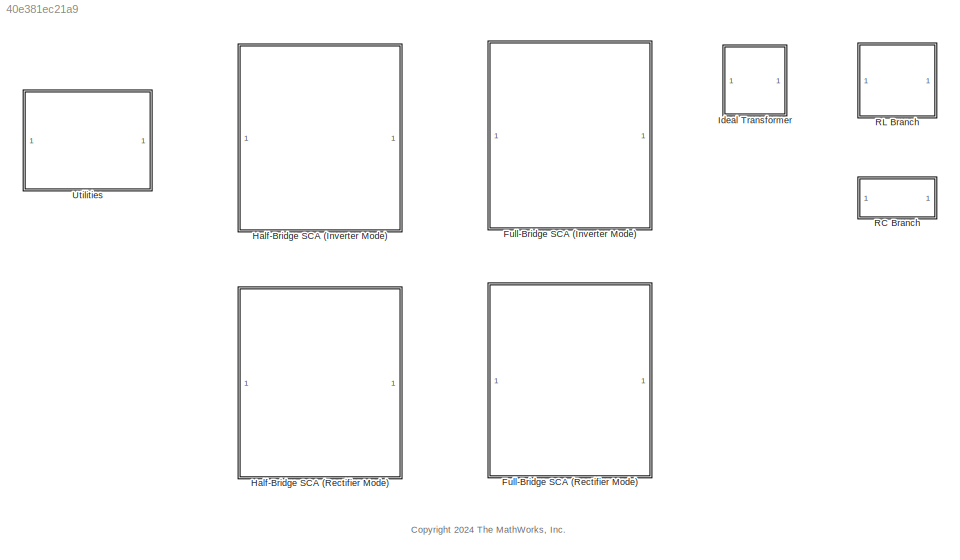
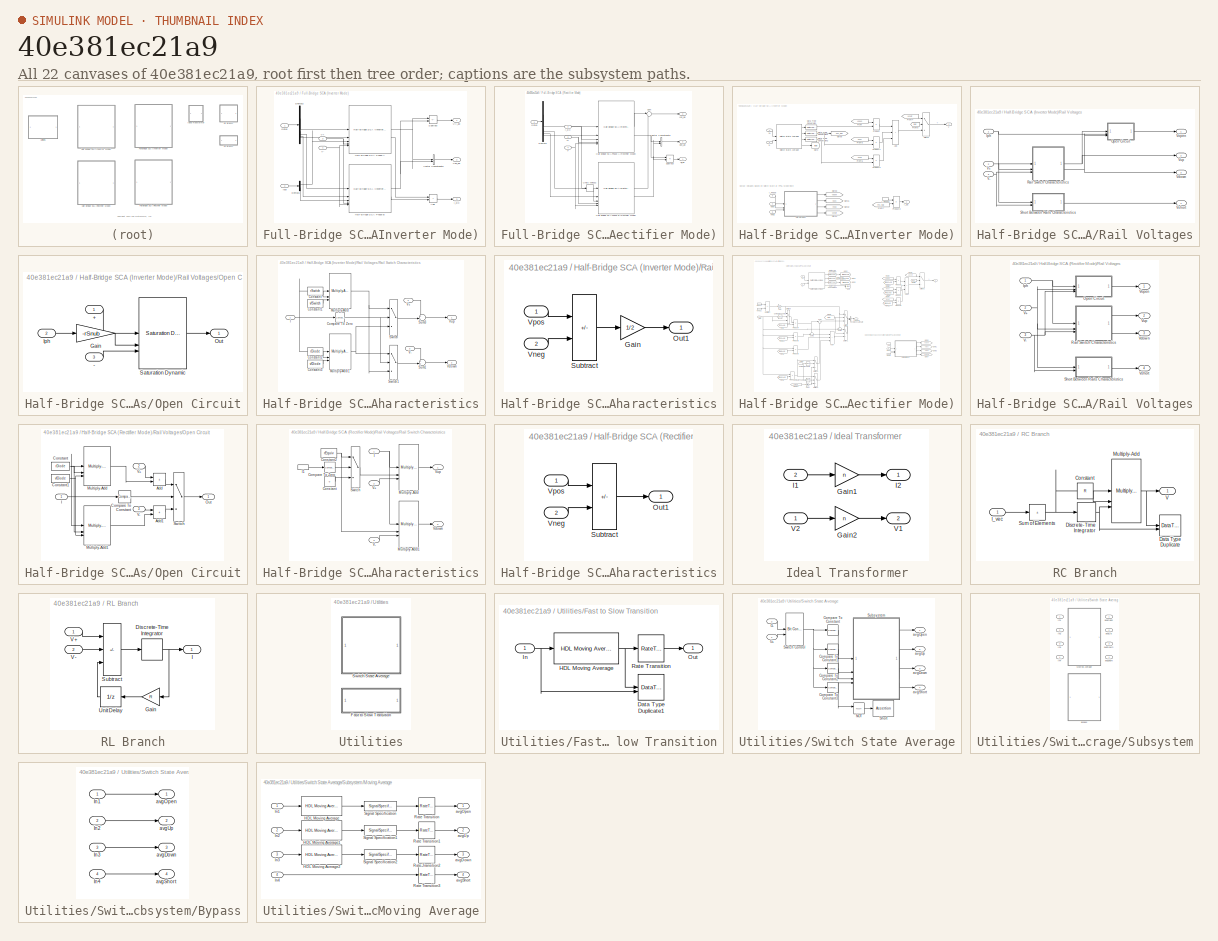
[diagram: thumbnail index - all 22 canvases of the model, root first then tree order]
MODEL slx_40e381ec21a9
KIND library
CONFIG AbsTol = auto
CONFIG EnableMultiTasking = off
CONFIG FixedStep = auto
CONFIG MaxStep = auto
CONFIG MinStep = auto
CONFIG RelTol = 1e-3
CONFIG SampleTimeConstraint = Unconstrained
CONFIG SolverName = VariableStepAuto
CONFIG StartTime = 0.0
CONFIG StopTime = 10.0
BLOCK [SubSystem] Full-Bridge SCA (Inverter Mode)
BLOCK [Sum] Full-Bridge SCA (Inverter Mode)/Add
  IconShape = rectangular
BLOCK [Demux] Full-Bridge SCA (Inverter Mode)/Demux1
  Outputs = 2
BLOCK [Demux] Full-Bridge SCA (Inverter Mode)/Demux2
BLOCK [Inport] Full-Bridge SCA (Inverter Mode)/Gates
  OutDataTypeStr = boolean
  PortDimensions = 4
BLOCK [Reference] Full-Bridge SCA (Inverter Mode)/Half-Bridge SCA Phase A  REF=$bdroot/Half-Bridge SCA
(Inverter Mode)
  SourceBlock = $bdroot/Half-Bridge SCA\n(Inverter Mode)
BLOCK [Reference] Full-Bridge SCA (Inverter Mode)/Half-Bridge SCA Phase B  REF=$bdroot/Half-Bridge SCA
(Inverter Mode)
  SourceBlock = $bdroot/Half-Bridge SCA\n(Inverter Mode)
BLOCK [Outport] Full-Bridge SCA (Inverter Mode)/I_DC
  Port = 3
BLOCK [Inport] Full-Bridge SCA (Inverter Mode)/Iout
  Port = 2
  PortDimensions = 2
BLOCK [Sum] Full-Bridge SCA (Inverter Mode)/Subtract
  IconShape = rectangular
  Inputs = +-
BLOCK [Inport] Full-Bridge SCA (Inverter Mode)/V+
  Port = 3
  PortDimensions = 1
BLOCK [Inport] Full-Bridge SCA (Inverter Mode)/V-
  Port = 4
  PortDimensions = 1
BLOCK [Concatenate] Full-Bridge SCA (Inverter Mode)/Vector Concatenate
BLOCK [Outport] Full-Bridge SCA (Inverter Mode)/Vll_ab
BLOCK [Outport] Full-Bridge SCA (Inverter Mode)/Vph_ab
  Port = 2
BLOCK [SubSystem] Full-Bridge SCA (Rectifier Mode)
BLOCK [Demux] Full-Bridge SCA (Rectifier Mode)/Demux2
BLOCK [Inport] Full-Bridge SCA (Rectifier Mode)/Gates
  PortDimensions = 4
BLOCK [Reference] Full-Bridge SCA (Rectifier Mode)/Half-Bridge SCA Phase A (Rectifier Mode)  REF=$bdroot/Half-Bridge SCA
(Rectifier Mode)
  SourceBlock = $bdroot/Half-Bridge SCA\n(Rectifier Mode)
BLOCK [Reference] Full-Bridge SCA (Rectifier Mode)/Half-Bridge SCA Phase B (Rectifier Mode)  REF=$bdroot/Half-Bridge SCA
(Rectifier Mode)
  SourceBlock = $bdroot/Half-Bridge SCA\n(Rectifier Mode)
BLOCK [Inport] Full-Bridge SCA (Rectifier Mode)/I_DC
  Port = 2
  PortDimensions = 1
BLOCK [Outport] Full-Bridge SCA (Rectifier Mode)/Iph_ab
  Port = 3
BLOCK [Sum] Full-Bridge SCA (Rectifier Mode)/Subtract
  IconShape = rectangular
  Inputs = +-
  OutDataTypeStr = Inherit: Inherit via back propagation
BLOCK [Sum] Full-Bridge SCA (Rectifier Mode)/Sum
  Inputs = |++
BLOCK [UnaryMinus] Full-Bridge SCA (Rectifier Mode)/Unary Minus2
BLOCK [Inport] Full-Bridge SCA (Rectifier Mode)/V+
  Port = 3
  PortDimensions = 1
BLOCK [Inport] Full-Bridge SCA (Rectifier Mode)/V-
  Port = 4
  PortDimensions = 1
BLOCK [Concatenate] Full-Bridge SCA (Rectifier Mode)/Vector Concatenate
BLOCK [Outport] Full-Bridge SCA (Rectifier Mode)/Vll_ab
BLOCK [Outport] Full-Bridge SCA (Rectifier Mode)/Vph_ab
  Port = 2
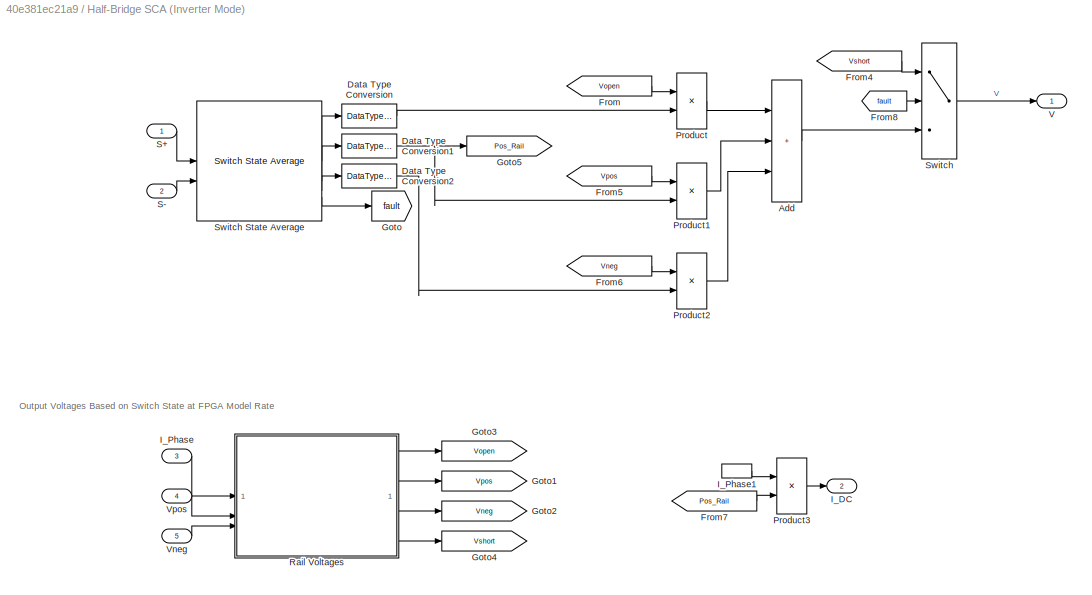
BLOCK [SubSystem] Half-Bridge SCA (Inverter Mode)
BLOCK [Sum] Half-Bridge SCA (Inverter Mode)/Add
  IconShape = rectangular
  Inputs = +++
  OutDataTypeStr = Inherit: Inherit via back propagation
BLOCK [DataTypeConversion] Half-Bridge SCA (Inverter Mode)/Data Type Conversion
  Commented = through
  RndMeth = Floor
  SaturateOnIntegerOverflow = off
BLOCK [DataTypeConversion] Half-Bridge SCA (Inverter Mode)/Data Type Conversion1
  Commented = through
  RndMeth = Floor
  SaturateOnIntegerOverflow = off
BLOCK [DataTypeConversion] Half-Bridge SCA (Inverter Mode)/Data Type Conversion2
  Commented = through
  RndMeth = Floor
  SaturateOnIntegerOverflow = off
BLOCK [From] Half-Bridge SCA (Inverter Mode)/From
  GotoTag = Vopen
BLOCK [From] Half-Bridge SCA (Inverter Mode)/From4
  GotoTag = Vshort
BLOCK [From] Half-Bridge SCA (Inverter Mode)/From5
  GotoTag = Vpos
BLOCK [From] Half-Bridge SCA (Inverter Mode)/From6
  GotoTag = Vneg
BLOCK [From] Half-Bridge SCA (Inverter Mode)/From7
  GotoTag = Pos_Rail
BLOCK [From] Half-Bridge SCA (Inverter Mode)/From8
  GotoTag = fault
BLOCK [Goto] Half-Bridge SCA (Inverter Mode)/Goto
  GotoTag = fault
BLOCK [Goto] Half-Bridge SCA (Inverter Mode)/Goto1
  GotoTag = Vpos
BLOCK [Goto] Half-Bridge SCA (Inverter Mode)/Goto2
  GotoTag = Vneg
BLOCK [Goto] Half-Bridge SCA (Inverter Mode)/Goto3
  GotoTag = Vopen
BLOCK [Goto] Half-Bridge SCA (Inverter Mode)/Goto4
  GotoTag = Vshort
BLOCK [Goto] Half-Bridge SCA (Inverter Mode)/Goto5
  GotoTag = Pos_Rail
BLOCK [Outport] Half-Bridge SCA (Inverter Mode)/I_DC
  Port = 2
  VectorParamsAs1DForOutWhenUnconnected = off
BLOCK [Inport] Half-Bridge SCA (Inverter Mode)/I_Phase
  Port = 3
BLOCK [InportShadow] Half-Bridge SCA (Inverter Mode)/I_Phase1
  Port = 3
BLOCK [Product] Half-Bridge SCA (Inverter Mode)/Product
  OutDataTypeStr = Inherit: Same as first input
BLOCK [Product] Half-Bridge SCA (Inverter Mode)/Product1
  OutDataTypeStr = Inherit: Same as first input
BLOCK [Product] Half-Bridge SCA (Inverter Mode)/Product2
  OutDataTypeStr = Inherit: Same as first input
BLOCK [Product] Half-Bridge SCA (Inverter Mode)/Product3
  OutDataTypeStr = Inherit: Same as first input
BLOCK [SubSystem] Half-Bridge SCA (Inverter Mode)/Rail Voltages
BLOCK [Inport] Half-Bridge SCA (Inverter Mode)/Rail Voltages/Iph
BLOCK [SubSystem] Half-Bridge SCA (Inverter Mode)/Rail Voltages/Open Circuit
BLOCK [Inport] Half-Bridge SCA (Inverter Mode)/Rail Voltages/Open Circuit/+
BLOCK [Inport] Half-Bridge SCA (Inverter Mode)/Rail Voltages/Open Circuit/-
  Port = 3
BLOCK [Gain] Half-Bridge SCA (Inverter Mode)/Rail Voltages/Open Circuit/Gain
  Gain = -rSnub
BLOCK [Inport] Half-Bridge SCA (Inverter Mode)/Rail Voltages/Open Circuit/Iph
  Port = 2
BLOCK [Outport] Half-Bridge SCA (Inverter Mode)/Rail Voltages/Open Circuit/Out
  VectorParamsAs1DForOutWhenUnconnected = off
BLOCK [Reference] Half-Bridge SCA (Inverter Mode)/Rail Voltages/Open Circuit/Saturation Dynamic  REF=simulink/Discontinuities/Saturation
Dynamic
  SourceBlock = simulink/Discontinuities/Saturation\nDynamic
  SourceType = Saturation Dynamic
BLOCK [SubSystem] Half-Bridge SCA (Inverter Mode)/Rail Voltages/Rail Switch Characteristics
BLOCK [Reference] Half-Bridge SCA (Inverter Mode)/Rail Voltages/Rail Switch Characteristics/Compare To Zero  REF=simulink/Logic and Bit
Operations/Compare
To Zero
  SourceBlock = simulink/Logic and Bit\nOperations/Compare\nTo Zero
  SourceType = Compare To Zero
BLOCK [Constant] Half-Bridge SCA (Inverter Mode)/Rail Voltages/Rail Switch Characteristics/Constant
  OutDataTypeStr = Inherit: Inherit via back propagation
  Value = rSwitch
BLOCK [Constant] Half-Bridge SCA (Inverter Mode)/Rail Voltages/Rail Switch Characteristics/Constant1
  OutDataTypeStr = Inherit: Inherit via back propagation
  Value = vfSwitch
BLOCK [Constant] Half-Bridge SCA (Inverter Mode)/Rail Voltages/Rail Switch Characteristics/Constant2
  OutDataTypeStr = Inherit: Inherit via back propagation
  Value = rDiode
BLOCK [Constant] Half-Bridge SCA (Inverter Mode)/Rail Voltages/Rail Switch Characteristics/Constant3
  OutDataTypeStr = Inherit: Inherit via back propagation
  Value = vfDiode
BLOCK [Inport] Half-Bridge SCA (Inverter Mode)/Rail Voltages/Rail Switch Characteristics/I
BLOCK [Reference] Half-Bridge SCA (Inverter Mode)/Rail Voltages/Rail Switch Characteristics/Multiply-Add  REF=hdlsllib/HDL Operations/Multiply-Add
  SourceBlock = hdlsllib/HDL Operations/Multiply-Add
  SourceType = Multiply-Add
BLOCK [Reference] Half-Bridge SCA (Inverter Mode)/Rail Voltages/Rail Switch Characteristics/Multiply-Add1  REF=hdlsllib/HDL Operations/Multiply-Add
  SourceBlock = hdlsllib/HDL Operations/Multiply-Add
  SourceType = Multiply-Add
BLOCK [Sum] Half-Bridge SCA (Inverter Mode)/Rail Voltages/Rail Switch Characteristics/Sum1
  Inputs = ++|
  OutDataTypeStr = Inherit: Same as first input
BLOCK [Sum] Half-Bridge SCA (Inverter Mode)/Rail Voltages/Rail Switch Characteristics/Sum3
  Inputs = +-|
  OutDataTypeStr = Inherit: Same as first input
BLOCK [Switch] Half-Bridge SCA (Inverter Mode)/Rail Voltages/Rail Switch Characteristics/Switch
  Criteria = u2 ~= 0
  InputSameDT = off
  SaturateOnIntegerOverflow = off
BLOCK [Switch] Half-Bridge SCA (Inverter Mode)/Rail Voltages/Rail Switch Characteristics/Switch1
  Criteria = u2 ~= 0
  InputSameDT = off
  SaturateOnIntegerOverflow = off
BLOCK [Inport] Half-Bridge SCA (Inverter Mode)/Rail Voltages/Rail Switch Characteristics/V+
  Port = 2
BLOCK [Inport] Half-Bridge SCA (Inverter Mode)/Rail Voltages/Rail Switch Characteristics/V-
  Port = 3
BLOCK [Outport] Half-Bridge SCA (Inverter Mode)/Rail Voltages/Rail Switch Characteristics/Vdown
  Port = 2
  VectorParamsAs1DForOutWhenUnconnected = off
BLOCK [Outport] Half-Bridge SCA (Inverter Mode)/Rail Voltages/Rail Switch Characteristics/Vup
  VectorParamsAs1DForOutWhenUnconnected = off
BLOCK [SubSystem] Half-Bridge SCA (Inverter Mode)/Rail Voltages/Short Between Rails Characteristics
BLOCK [Gain] Half-Bridge SCA (Inverter Mode)/Rail Voltages/Short Between Rails Characteristics/Gain
  Gain = 1/2
  OutDataTypeStr = Inherit: Inherit via back propagation
BLOCK [Outport] Half-Bridge SCA (Inverter Mode)/Rail Voltages/Short Between Rails Characteristics/Out1
BLOCK [Sum] Half-Bridge SCA (Inverter Mode)/Rail Voltages/Short Between Rails Characteristics/Subtract
  IconShape = rectangular
  Inputs = +-
BLOCK [Inport] Half-Bridge SCA (Inverter Mode)/Rail Voltages/Short Between Rails Characteristics/Vneg
  Port = 2
BLOCK [Inport] Half-Bridge SCA (Inverter Mode)/Rail Voltages/Short Between Rails Characteristics/Vpos
BLOCK [Inport] Half-Bridge SCA (Inverter Mode)/Rail Voltages/V+
  Port = 2
BLOCK [Inport] Half-Bridge SCA (Inverter Mode)/Rail Voltages/V-
  Port = 3
BLOCK [Outport] Half-Bridge SCA (Inverter Mode)/Rail Voltages/Vdown
  Port = 3
BLOCK [Outport] Half-Bridge SCA (Inverter Mode)/Rail Voltages/Vopen
BLOCK [Outport] Half-Bridge SCA (Inverter Mode)/Rail Voltages/Vshort
  Port = 4
BLOCK [Outport] Half-Bridge SCA (Inverter Mode)/Rail Voltages/Vup
  Port = 2
BLOCK [Inport] Half-Bridge SCA (Inverter Mode)/S+
BLOCK [Inport] Half-Bridge SCA (Inverter Mode)/S-
  Port = 2
BLOCK [Switch] Half-Bridge SCA (Inverter Mode)/Switch
  Criteria = u2 ~= 0
  SaturateOnIntegerOverflow = off
BLOCK [Reference] Half-Bridge SCA (Inverter Mode)/Switch State Average  REF=$bdroot/Utilities/Switch State Average
  SourceBlock = $bdroot/Utilities/Switch State Average
BLOCK [Outport] Half-Bridge SCA (Inverter Mode)/V
  VectorParamsAs1DForOutWhenUnconnected = off
BLOCK [Inport] Half-Bridge SCA (Inverter Mode)/Vneg
  Port = 5
BLOCK [Inport] Half-Bridge SCA (Inverter Mode)/Vpos
  Port = 4
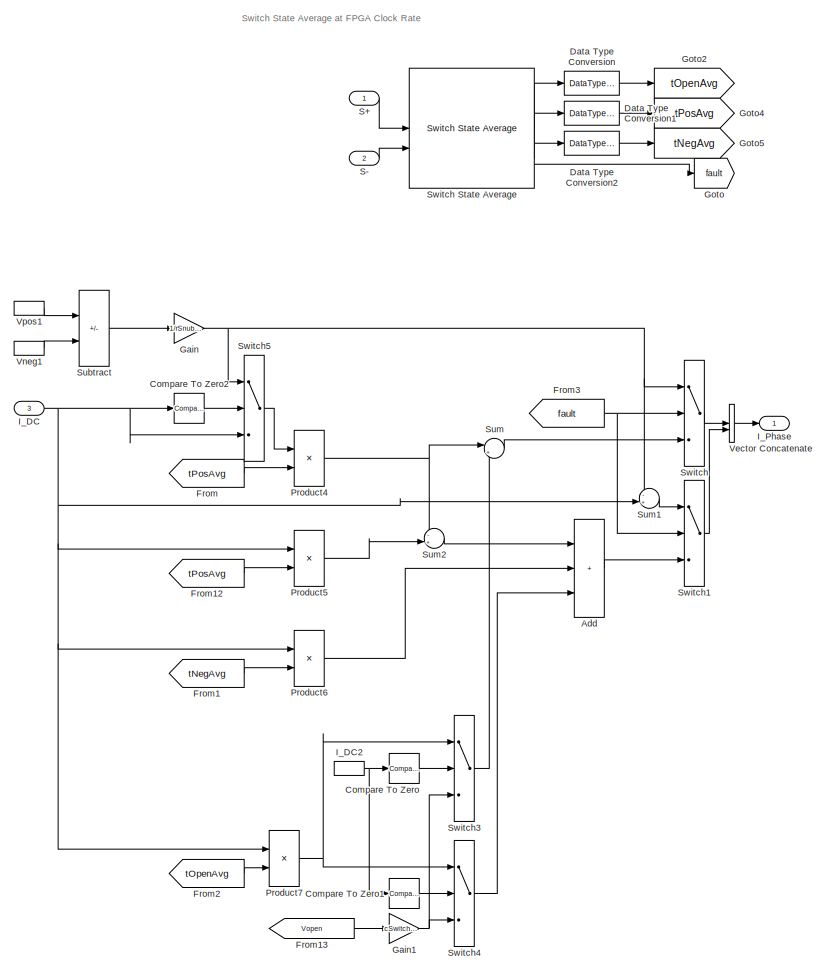
[diagram: Half-Bridge SCA (Rectifier Mode) - part 1/2, left side, full height]
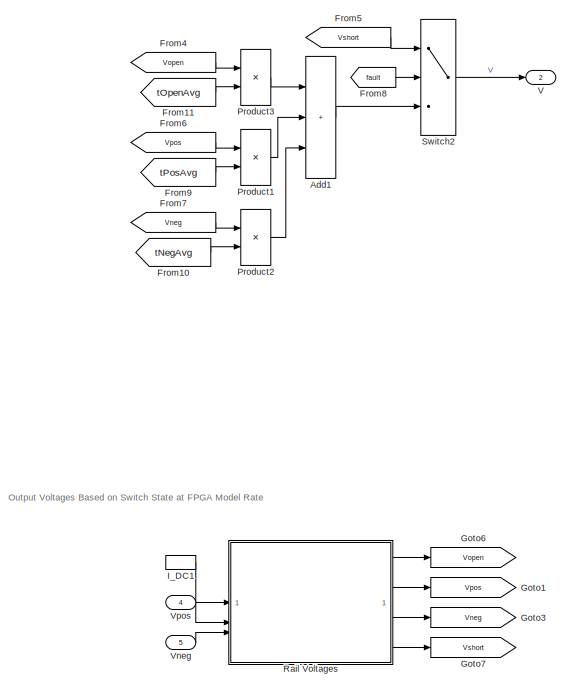
[diagram: Half-Bridge SCA (Rectifier Mode) - part 2/2, middle right region]
BLOCK [SubSystem] Half-Bridge SCA (Rectifier Mode)
BLOCK [Sum] Half-Bridge SCA (Rectifier Mode)/Add
  IconShape = rectangular
  Inputs = +++
  OutDataTypeStr = Inherit: Inherit via back propagation
BLOCK [Sum] Half-Bridge SCA (Rectifier Mode)/Add1
  IconShape = rectangular
  InputSameDT = on
  Inputs = +++
  OutDataTypeStr = Inherit: Inherit via back propagation
BLOCK [Reference] Half-Bridge SCA (Rectifier Mode)/Compare To Zero  REF=simulink/Logic and Bit
Operations/Compare
To Zero
  SourceBlock = simulink/Logic and Bit\nOperations/Compare\nTo Zero
  SourceType = Compare To Zero
BLOCK [Reference] Half-Bridge SCA (Rectifier Mode)/Compare To Zero1  REF=simulink/Logic and Bit
Operations/Compare
To Zero
  SourceBlock = simulink/Logic and Bit\nOperations/Compare\nTo Zero
  SourceType = Compare To Zero
BLOCK [Reference] Half-Bridge SCA (Rectifier Mode)/Compare To Zero2  REF=simulink/Logic and Bit
Operations/Compare
To Zero
  SourceBlock = simulink/Logic and Bit\nOperations/Compare\nTo Zero
  SourceType = Compare To Zero
BLOCK [DataTypeConversion] Half-Bridge SCA (Rectifier Mode)/Data Type Conversion
  Commented = through
  RndMeth = Floor
  SaturateOnIntegerOverflow = off
BLOCK [DataTypeConversion] Half-Bridge SCA (Rectifier Mode)/Data Type Conversion1
  Commented = through
  RndMeth = Floor
  SaturateOnIntegerOverflow = off
BLOCK [DataTypeConversion] Half-Bridge SCA (Rectifier Mode)/Data Type Conversion2
  Commented = through
  RndMeth = Floor
  SaturateOnIntegerOverflow = off
BLOCK [From] Half-Bridge SCA (Rectifier Mode)/From
  GotoTag = tPosAvg
BLOCK [From] Half-Bridge SCA (Rectifier Mode)/From1
  GotoTag = tNegAvg
BLOCK [From] Half-Bridge SCA (Rectifier Mode)/From10
  GotoTag = tNegAvg
BLOCK [From] Half-Bridge SCA (Rectifier Mode)/From11
  GotoTag = tOpenAvg
BLOCK [From] Half-Bridge SCA (Rectifier Mode)/From12
  GotoTag = tPosAvg
BLOCK [From] Half-Bridge SCA (Rectifier Mode)/From13
  GotoTag = Vopen
BLOCK [From] Half-Bridge SCA (Rectifier Mode)/From2
  GotoTag = tOpenAvg
BLOCK [From] Half-Bridge SCA (Rectifier Mode)/From3
  GotoTag = fault
BLOCK [From] Half-Bridge SCA (Rectifier Mode)/From4
  GotoTag = Vopen
BLOCK [From] Half-Bridge SCA (Rectifier Mode)/From5
  GotoTag = Vshort
BLOCK [From] Half-Bridge SCA (Rectifier Mode)/From6
  GotoTag = Vpos
BLOCK [From] Half-Bridge SCA (Rectifier Mode)/From7
  GotoTag = Vneg
BLOCK [From] Half-Bridge SCA (Rectifier Mode)/From8
  GotoTag = fault
BLOCK [From] Half-Bridge SCA (Rectifier Mode)/From9
  GotoTag = tPosAvg
BLOCK [Gain] Half-Bridge SCA (Rectifier Mode)/Gain
  Commented = on
  Gain = 1/rSnubber
  OutDataTypeStr = Inherit: Inherit via back propagation
BLOCK [Gain] Half-Bridge SCA (Rectifier Mode)/Gain1
  Gain = cSwitch+cDiode
  OutDataTypeStr = Inherit: Inherit via back propagation
BLOCK [Goto] Half-Bridge SCA (Rectifier Mode)/Goto
  GotoTag = fault
BLOCK [Goto] Half-Bridge SCA (Rectifier Mode)/Goto1
  GotoTag = Vpos
BLOCK [Goto] Half-Bridge SCA (Rectifier Mode)/Goto2
  GotoTag = tOpenAvg
BLOCK [Goto] Half-Bridge SCA (Rectifier Mode)/Goto3
  GotoTag = Vneg
BLOCK [Goto] Half-Bridge SCA (Rectifier Mode)/Goto4
  GotoTag = tPosAvg
BLOCK [Goto] Half-Bridge SCA (Rectifier Mode)/Goto5
  GotoTag = tNegAvg
BLOCK [Goto] Half-Bridge SCA (Rectifier Mode)/Goto6
  GotoTag = Vopen
BLOCK [Goto] Half-Bridge SCA (Rectifier Mode)/Goto7
  GotoTag = Vshort
BLOCK [Inport] Half-Bridge SCA (Rectifier Mode)/I_DC
  Port = 3
BLOCK [InportShadow] Half-Bridge SCA (Rectifier Mode)/I_DC1
  Port = 3
BLOCK [InportShadow] Half-Bridge SCA (Rectifier Mode)/I_DC2
  Port = 3
BLOCK [Outport] Half-Bridge SCA (Rectifier Mode)/I_Phase
BLOCK [Product] Half-Bridge SCA (Rectifier Mode)/Product1
  OutDataTypeStr = Inherit: Same as first input
BLOCK [Product] Half-Bridge SCA (Rectifier Mode)/Product2
  OutDataTypeStr = Inherit: Same as first input
BLOCK [Product] Half-Bridge SCA (Rectifier Mode)/Product3
  OutDataTypeStr = Inherit: Same as first input
BLOCK [Product] Half-Bridge SCA (Rectifier Mode)/Product4
  OutDataTypeStr = Inherit: Same as first input
BLOCK [Product] Half-Bridge SCA (Rectifier Mode)/Product5
  OutDataTypeStr = Inherit: Same as first input
BLOCK [Product] Half-Bridge SCA (Rectifier Mode)/Product6
  OutDataTypeStr = Inherit: Same as first input
BLOCK [Product] Half-Bridge SCA (Rectifier Mode)/Product7
  OutDataTypeStr = Inherit: Same as first input
BLOCK [SubSystem] Half-Bridge SCA (Rectifier Mode)/Rail Voltages
BLOCK [Inport] Half-Bridge SCA (Rectifier Mode)/Rail Voltages/Iph
BLOCK [SubSystem] Half-Bridge SCA (Rectifier Mode)/Rail Voltages/Open Circuit
BLOCK [Sum] Half-Bridge SCA (Rectifier Mode)/Rail Voltages/Open Circuit/Add
  IconShape = rectangular
  OutDataTypeStr = Inherit: Same as first input
BLOCK [Sum] Half-Bridge SCA (Rectifier Mode)/Rail Voltages/Open Circuit/Add1
  IconShape = rectangular
  OutDataTypeStr = Inherit: Same as first input
BLOCK [Reference] Half-Bridge SCA (Rectifier Mode)/Rail Voltages/Open Circuit/Compare To Constant  REF=simulink/Logic and Bit
Operations/Compare
To Constant
  SourceBlock = simulink/Logic and Bit\nOperations/Compare\nTo Constant
  SourceType = Compare To Constant
BLOCK [Constant] Half-Bridge SCA (Rectifier Mode)/Rail Voltages/Open Circuit/Constant
  OutDataTypeStr = Inherit: Inherit via back propagation
  Value = rDiode
BLOCK [Constant] Half-Bridge SCA (Rectifier Mode)/Rail Voltages/Open Circuit/Constant1
  OutDataTypeStr = Inherit: Inherit via back propagation
  Value = vfDiode
BLOCK [Inport] Half-Bridge SCA (Rectifier Mode)/Rail Voltages/Open Circuit/I
BLOCK [Reference] Half-Bridge SCA (Rectifier Mode)/Rail Voltages/Open Circuit/Multiply-Add  REF=hdlsllib/HDL Operations/Multiply-Add
  SourceBlock = hdlsllib/HDL Operations/Multiply-Add
  SourceType = Multiply-Add
BLOCK [Reference] Half-Bridge SCA (Rectifier Mode)/Rail Voltages/Open Circuit/Multiply-Add1  REF=hdlsllib/HDL Operations/Multiply-Add
  SourceBlock = hdlsllib/HDL Operations/Multiply-Add
  SourceType = Multiply-Add
BLOCK [Outport] Half-Bridge SCA (Rectifier Mode)/Rail Voltages/Open Circuit/Out
  VectorParamsAs1DForOutWhenUnconnected = off
BLOCK [Switch] Half-Bridge SCA (Rectifier Mode)/Rail Voltages/Open Circuit/Switch
  Criteria = u2 ~= 0
  SaturateOnIntegerOverflow = off
BLOCK [Inport] Half-Bridge SCA (Rectifier Mode)/Rail Voltages/Open Circuit/V+
  Port = 2
BLOCK [Inport] Half-Bridge SCA (Rectifier Mode)/Rail Voltages/Open Circuit/V-
  Port = 3
BLOCK [SubSystem] Half-Bridge SCA (Rectifier Mode)/Rail Voltages/Rail Switch Characteristics
BLOCK [Reference] Half-Bridge SCA (Rectifier Mode)/Rail Voltages/Rail Switch Characteristics/Compare To Zero  REF=simulink/Logic and Bit
Operations/Compare
To Zero
  SourceBlock = simulink/Logic and Bit\nOperations/Compare\nTo Zero
  SourceType = Compare To Zero
BLOCK [Constant] Half-Bridge SCA (Rectifier Mode)/Rail Voltages/Rail Switch Characteristics/Constant
  OutDataTypeStr = Inherit: Inherit via back propagation
  SampleTime = Inf
  Value = 0
BLOCK [Constant] Half-Bridge SCA (Rectifier Mode)/Rail Voltages/Rail Switch Characteristics/Constant2
  OutDataTypeStr = fixdt(1,16)
  OutMax = 1
  OutMin = 0
  SampleTime = Inf
  Value = rEquiv
BLOCK [Inport] Half-Bridge SCA (Rectifier Mode)/Rail Voltages/Rail Switch Characteristics/I
BLOCK [InportShadow] Half-Bridge SCA (Rectifier Mode)/Rail Voltages/Rail Switch Characteristics/I1
BLOCK [Reference] Half-Bridge SCA (Rectifier Mode)/Rail Voltages/Rail Switch Characteristics/Multiply-Add  REF=hdlsllib/HDL Operations/Multiply-Add
  SourceBlock = hdlsllib/HDL Operations/Multiply-Add
  SourceType = Multiply-Add
BLOCK [Reference] Half-Bridge SCA (Rectifier Mode)/Rail Voltages/Rail Switch Characteristics/Multiply-Add1  REF=hdlsllib/HDL Operations/Multiply-Add
  SourceBlock = hdlsllib/HDL Operations/Multiply-Add
  SourceType = Multiply-Add
BLOCK [Switch] Half-Bridge SCA (Rectifier Mode)/Rail Voltages/Rail Switch Characteristics/Switch
  Criteria = u2 ~= 0
  OutDataTypeStr = Inherit: Inherit via back propagation
  SaturateOnIntegerOverflow = off
BLOCK [Inport] Half-Bridge SCA (Rectifier Mode)/Rail Voltages/Rail Switch Characteristics/V+
  Port = 2
BLOCK [Inport] Half-Bridge SCA (Rectifier Mode)/Rail Voltages/Rail Switch Characteristics/V-
  Port = 3
BLOCK [Outport] Half-Bridge SCA (Rectifier Mode)/Rail Voltages/Rail Switch Characteristics/Vdown
  Port = 2
  VectorParamsAs1DForOutWhenUnconnected = off
BLOCK [Outport] Half-Bridge SCA (Rectifier Mode)/Rail Voltages/Rail Switch Characteristics/Vup
  VectorParamsAs1DForOutWhenUnconnected = off
BLOCK [SubSystem] Half-Bridge SCA (Rectifier Mode)/Rail Voltages/Short Between Rails Characteristics
BLOCK [Outport] Half-Bridge SCA (Rectifier Mode)/Rail Voltages/Short Between Rails Characteristics/Out1
BLOCK [Sum] Half-Bridge SCA (Rectifier Mode)/Rail Voltages/Short Between Rails Characteristics/Subtract
  IconShape = rectangular
  Inputs = +-
  OutDataTypeStr = Inherit: Inherit via back propagation
BLOCK [Inport] Half-Bridge SCA (Rectifier Mode)/Rail Voltages/Short Between Rails Characteristics/Vneg
  Port = 2
BLOCK [Inport] Half-Bridge SCA (Rectifier Mode)/Rail Voltages/Short Between Rails Characteristics/Vpos
BLOCK [Inport] Half-Bridge SCA (Rectifier Mode)/Rail Voltages/V+
  Port = 2
BLOCK [Inport] Half-Bridge SCA (Rectifier Mode)/Rail Voltages/V-
  Port = 3
BLOCK [Outport] Half-Bridge SCA (Rectifier Mode)/Rail Voltages/Vdown
  Port = 3
BLOCK [Outport] Half-Bridge SCA (Rectifier Mode)/Rail Voltages/Vopen
BLOCK [Outport] Half-Bridge SCA (Rectifier Mode)/Rail Voltages/Vshort
  Port = 4
BLOCK [Outport] Half-Bridge SCA (Rectifier Mode)/Rail Voltages/Vup
  Port = 2
BLOCK [Inport] Half-Bridge SCA (Rectifier Mode)/S+
  PortDimensions = 1
BLOCK [Inport] Half-Bridge SCA (Rectifier Mode)/S-
  Port = 2
  PortDimensions = 1
BLOCK [Sum] Half-Bridge SCA (Rectifier Mode)/Subtract
  IconShape = rectangular
  Inputs = +-
BLOCK [Sum] Half-Bridge SCA (Rectifier Mode)/Sum
  Inputs = |++
  OutDataTypeStr = Inherit: Inherit via back propagation
BLOCK [Sum] Half-Bridge SCA (Rectifier Mode)/Sum1
  Inputs = -+|
  OutDataTypeStr = Inherit: Inherit via back propagation
BLOCK [Sum] Half-Bridge SCA (Rectifier Mode)/Sum2
  Inputs = -+|
BLOCK [Switch] Half-Bridge SCA (Rectifier Mode)/Switch
  Criteria = u2 ~= 0
  SaturateOnIntegerOverflow = off
BLOCK [Reference] Half-Bridge SCA (Rectifier Mode)/Switch State Average  REF=$bdroot/Utilities/Switch State Average
  SourceBlock = $bdroot/Utilities/Switch State Average
BLOCK [Switch] Half-Bridge SCA (Rectifier Mode)/Switch1
  Criteria = u2 ~= 0
  SaturateOnIntegerOverflow = off
BLOCK [Switch] Half-Bridge SCA (Rectifier Mode)/Switch2
  Criteria = u2 ~= 0
  SaturateOnIntegerOverflow = off
BLOCK [Switch] Half-Bridge SCA (Rectifier Mode)/Switch3
  Criteria = u2 ~= 0
  SaturateOnIntegerOverflow = off
BLOCK [Switch] Half-Bridge SCA (Rectifier Mode)/Switch4
  Criteria = u2 ~= 0
  SaturateOnIntegerOverflow = off
BLOCK [Switch] Half-Bridge SCA (Rectifier Mode)/Switch5
  Criteria = u2 ~= 0
  SaturateOnIntegerOverflow = off
BLOCK [Outport] Half-Bridge SCA (Rectifier Mode)/V
  Port = 2
  VectorParamsAs1DForOutWhenUnconnected = off
BLOCK [Concatenate] Half-Bridge SCA (Rectifier Mode)/Vector Concatenate
BLOCK [Inport] Half-Bridge SCA (Rectifier Mode)/Vneg
  Port = 5
BLOCK [InportShadow] Half-Bridge SCA (Rectifier Mode)/Vneg1
  Port = 5
BLOCK [Inport] Half-Bridge SCA (Rectifier Mode)/Vpos
  Port = 4
BLOCK [InportShadow] Half-Bridge SCA (Rectifier Mode)/Vpos1
  Port = 4
BLOCK [SubSystem] Ideal Transformer
BLOCK [Gain] Ideal Transformer/Gain1
  Gain = n
  OutDataTypeStr = Inherit: Inherit via back propagation
BLOCK [Gain] Ideal Transformer/Gain2
  Gain = n
  OutDataTypeStr = Inherit: Inherit via back propagation
BLOCK [Inport] Ideal Transformer/I1
  Port = 2
BLOCK [Outport] Ideal Transformer/I2
BLOCK [Outport] Ideal Transformer/V1
  Port = 2
BLOCK [Inport] Ideal Transformer/V2
  PortDimensions = 1
BLOCK [SubSystem] RC Branch
BLOCK [Constant] RC Branch/Constant
  OutDataTypeStr = Inherit: Inherit via back propagation
  SampleTime = Inf
  Value = R
BLOCK [DataTypeDuplicate] RC Branch/Data Type Duplicate
BLOCK [DiscreteIntegrator] RC Branch/Discrete-Time Integrator
  ICPrevOutput = DiscIntNeverNeededParam
  ICPrevScaledInput = DiscIntNeverNeededParam
  InitialConditionSetting = Auto
  OutDataTypeStr = Inherit: Inherit via back propagation
  SampleTime = -1
  gainval = 1/C
BLOCK [Inport] RC Branch/I_vec
BLOCK [Reference] RC Branch/Multiply-Add  REF=hdlsllib/HDL Operations/Multiply-Add
  SourceBlock = hdlsllib/HDL Operations/Multiply-Add
  SourceType = Multiply-Add
BLOCK [Sum] RC Branch/Sum of Elements
  IconShape = rectangular
  Inputs = +
BLOCK [Outport] RC Branch/V
BLOCK [SubSystem] RL Branch
BLOCK [DiscreteIntegrator] RL Branch/Discrete-Time Integrator
  ICPrevOutput = DiscIntNeverNeededParam
  ICPrevScaledInput = DiscIntNeverNeededParam
  InitialConditionSetting = Auto
  OutDataTypeStr = Inherit: Inherit via back propagation
  SampleTime = -1
  gainval = 1/L
BLOCK [Gain] RL Branch/Gain
  Gain = R
  OutDataTypeStr = Inherit: Inherit via back propagation
BLOCK [Outport] RL Branch/I
BLOCK [Sum] RL Branch/Subtract
  IconShape = rectangular
  Inputs = +--
  OutDataTypeStr = Inherit: Inherit via back propagation
BLOCK [UnitDelay] RL Branch/Unit Delay
  HasFrameUpgradeWarning = on
  SampleTime = -1
BLOCK [Inport] RL Branch/V+
  PortDimensions = 1
BLOCK [Inport] RL Branch/V-
  Port = 2
  PortDimensions = 1
BLOCK [SubSystem] Utilities
BLOCK [SubSystem] Utilities/Fast to Slow Transition
BLOCK [DataTypeDuplicate] Utilities/Fast to Slow Transition/Data Type Duplicate1
BLOCK [Reference] Utilities/Fast to Slow Transition/HDL Moving Average  REF=fpga_utils_lib/HDL Moving Average  (lib defined in slx_141b27237374)
  SourceBlock = fpga_utils_lib/HDL Moving Average
BLOCK [Inport] Utilities/Fast to Slow Transition/In
BLOCK [Outport] Utilities/Fast to Slow Transition/Out
BLOCK [RateTransition] Utilities/Fast to Slow Transition/Rate Transition
  OutPortSampleTimeMultiple = avgRatio
  OutPortSampleTimeOpt = Multiple of input port sample time
BLOCK [SubSystem] Utilities/Switch State Average
BLOCK [Reference] Utilities/Switch State Average/Compare To Constant  REF=simulink/Logic and Bit
Operations/Compare
To Constant
  SourceBlock = simulink/Logic and Bit\nOperations/Compare\nTo Constant
  SourceType = Compare To Constant
BLOCK [Reference] Utilities/Switch State Average/Compare To Constant1  REF=simulink/Logic and Bit
Operations/Compare
To Constant
  SourceBlock = simulink/Logic and Bit\nOperations/Compare\nTo Constant
  SourceType = Compare To Constant
BLOCK [Reference] Utilities/Switch State Average/Compare To Constant2  REF=simulink/Logic and Bit
Operations/Compare
To Constant
  SourceBlock = simulink/Logic and Bit\nOperations/Compare\nTo Constant
  SourceType = Compare To Constant
BLOCK [Reference] Utilities/Switch State Average/Compare To Constant3  REF=simulink/Logic and Bit
Operations/Compare
To Constant
  SourceBlock = simulink/Logic and Bit\nOperations/Compare\nTo Constant
  SourceType = Compare To Constant
BLOCK [Inport] Utilities/Switch State Average/G+
  OutDataTypeStr = boolean
  PortDimensions = 1
BLOCK [Inport] Utilities/Switch State Average/G-
  OutDataTypeStr = boolean
  Port = 2
  PortDimensions = 1
BLOCK [Logic] Utilities/Switch State Average/NOT
  AllPortsSameDT = off
  IconShape = distinctive
  Operator = NOT
  OutDataTypeStr = boolean
BLOCK [Assertion] Utilities/Switch State Average/Short
  StopWhenAssertionFail = off
BLOCK [SubSystem] Utilities/Switch State Average/Subsystem
  Variant = on
  VariantControl = Subsystem
BLOCK [SubSystem] Utilities/Switch State Average/Subsystem/Bypass
  VariantControl = avgRatio==1
BLOCK [Inport] Utilities/Switch State Average/Subsystem/Bypass/In1
BLOCK [Inport] Utilities/Switch State Average/Subsystem/Bypass/In2
  Port = 2
BLOCK [Inport] Utilities/Switch State Average/Subsystem/Bypass/In3
  Port = 3
BLOCK [Inport] Utilities/Switch State Average/Subsystem/Bypass/In4
  Port = 4
BLOCK [Outport] Utilities/Switch State Average/Subsystem/Bypass/avgDown
  Port = 3
BLOCK [Outport] Utilities/Switch State Average/Subsystem/Bypass/avgOpen
BLOCK [Outport] Utilities/Switch State Average/Subsystem/Bypass/avgShort
  Port = 4
BLOCK [Outport] Utilities/Switch State Average/Subsystem/Bypass/avgUp
  Port = 2
BLOCK [Inport] Utilities/Switch State Average/Subsystem/In1
BLOCK [Inport] Utilities/Switch State Average/Subsystem/In2
  Port = 2
BLOCK [Inport] Utilities/Switch State Average/Subsystem/In3
  Port = 3
BLOCK [Inport] Utilities/Switch State Average/Subsystem/In4
  Port = 4
BLOCK [SubSystem] Utilities/Switch State Average/Subsystem/Moving Average
  VariantControl = avgRatio>1
BLOCK [Reference] Utilities/Switch State Average/Subsystem/Moving Average/HDL Moving Average  REF=fpga_utils_lib/HDL Moving Average  (lib defined in slx_141b27237374)
  SourceBlock = fpga_utils_lib/HDL Moving Average
BLOCK [Reference] Utilities/Switch State Average/Subsystem/Moving Average/HDL Moving Average1  REF=fpga_utils_lib/HDL Moving Average  (lib defined in slx_141b27237374)
  SourceBlock = fpga_utils_lib/HDL Moving Average
BLOCK [Reference] Utilities/Switch State Average/Subsystem/Moving Average/HDL Moving Average2  REF=fpga_utils_lib/HDL Moving Average  (lib defined in slx_141b27237374)
  SourceBlock = fpga_utils_lib/HDL Moving Average
BLOCK [Inport] Utilities/Switch State Average/Subsystem/Moving Average/In1
BLOCK [Inport] Utilities/Switch State Average/Subsystem/Moving Average/In2
  Port = 2
BLOCK [Inport] Utilities/Switch State Average/Subsystem/Moving Average/In3
  Port = 3
BLOCK [Inport] Utilities/Switch State Average/Subsystem/Moving Average/In4
  Port = 4
BLOCK [RateTransition] Utilities/Switch State Average/Subsystem/Moving Average/Rate Transition
  OutPortSampleTimeMultiple = avgRatio
  OutPortSampleTimeOpt = Multiple of input port sample time
BLOCK [RateTransition] Utilities/Switch State Average/Subsystem/Moving Average/Rate Transition1
  OutPortSampleTimeMultiple = avgRatio
  OutPortSampleTimeOpt = Multiple of input port sample time
BLOCK [RateTransition] Utilities/Switch State Average/Subsystem/Moving Average/Rate Transition2
  OutPortSampleTimeMultiple = avgRatio
  OutPortSampleTimeOpt = Multiple of input port sample time
BLOCK [RateTransition] Utilities/Switch State Average/Subsystem/Moving Average/Rate Transition3
  OutPortSampleTimeMultiple = avgRatio
  OutPortSampleTimeOpt = Multiple of input port sample time
BLOCK [SignalSpecification] Utilities/Switch State Average/Subsystem/Moving Average/Signal Specification
  LockScale = on
  OutDataTypeStr = fixdt(1,15,13)
  OutMax = 1
  OutMin = 0
BLOCK [SignalSpecification] Utilities/Switch State Average/Subsystem/Moving Average/Signal Specification1
  LockScale = on
  OutDataTypeStr = fixdt(1,15,13)
  OutMax = 1
  OutMin = 0
BLOCK [SignalSpecification] Utilities/Switch State Average/Subsystem/Moving Average/Signal Specification2
  LockScale = on
  OutDataTypeStr = fixdt(1,15,13)
  OutMax = 1
  OutMin = 0
BLOCK [Outport] Utilities/Switch State Average/Subsystem/Moving Average/avgDown
  Port = 3
BLOCK [Outport] Utilities/Switch State Average/Subsystem/Moving Average/avgOpen
BLOCK [Outport] Utilities/Switch State Average/Subsystem/Moving Average/avgShort
  Port = 4
BLOCK [Outport] Utilities/Switch State Average/Subsystem/Moving Average/avgUp
  Port = 2
BLOCK [Outport] Utilities/Switch State Average/Subsystem/avgDown
  Port = 3
BLOCK [Outport] Utilities/Switch State Average/Subsystem/avgOpen
BLOCK [Outport] Utilities/Switch State Average/Subsystem/avgShort
  Port = 4
BLOCK [Outport] Utilities/Switch State Average/Subsystem/avgUp
  Port = 2
BLOCK [Reference] Utilities/Switch State Average/Switch Control  REF=hdlsllib/Logic and Bit
Operations/Bit Concat
  SourceBlock = hdlsllib/Logic and Bit\nOperations/Bit Concat
  SourceType = Bit Concat
BLOCK [Outport] Utilities/Switch State Average/avgDown
  Port = 3
BLOCK [Outport] Utilities/Switch State Average/avgOpen
BLOCK [Outport] Utilities/Switch State Average/avgShort
  Port = 4
BLOCK [Outport] Utilities/Switch State Average/avgUp
  Port = 2
ANNOTATION (root): <copyright redacted>
ANNOTATION Half-Bridge SCA (Inverter Mode): Output Voltages Based on Switch State at FPGA Model Rate
ANNOTATION Half-Bridge SCA (Rectifier Mode): Output Voltages Based on Switch State at FPGA Model Rate
ANNOTATION Half-Bridge SCA (Rectifier Mode): Switch State Average at FPGA Clock Rate
LINE Full-Bridge SCA (Inverter Mode)/Add:1 -> Full-Bridge SCA (Inverter Mode)/I_DC:1
LINE Full-Bridge SCA (Inverter Mode)/Demux1:1 -> Full-Bridge SCA (Inverter Mode)/Half-Bridge SCA Phase A:3
LINE Full-Bridge SCA (Inverter Mode)/Demux1:2 -> Full-Bridge SCA (Inverter Mode)/Half-Bridge SCA Phase B:3
LINE Full-Bridge SCA (Inverter Mode)/Demux2:1 -> Full-Bridge SCA (Inverter Mode)/Half-Bridge SCA Phase A:1
LINE Full-Bridge SCA (Inverter Mode)/Demux2:2 -> Full-Bridge SCA (Inverter Mode)/Half-Bridge SCA Phase A:2
LINE Full-Bridge SCA (Inverter Mode)/Demux2:3 -> Full-Bridge SCA (Inverter Mode)/Half-Bridge SCA Phase B:1
LINE Full-Bridge SCA (Inverter Mode)/Demux2:4 -> Full-Bridge SCA (Inverter Mode)/Half-Bridge SCA Phase B:2
LINE Full-Bridge SCA (Inverter Mode)/Gates:1 -> Full-Bridge SCA (Inverter Mode)/Demux2:1
NET Full-Bridge SCA (Inverter Mode)/Half-Bridge SCA Phase A:1 -> Full-Bridge SCA (Inverter Mode)/Subtract:1, Full-Bridge SCA (Inverter Mode)/Vector Concatenate:1
LINE Full-Bridge SCA (Inverter Mode)/Half-Bridge SCA Phase A:2 -> Full-Bridge SCA (Inverter Mode)/Add:1
NET Full-Bridge SCA (Inverter Mode)/Half-Bridge SCA Phase B:1 -> Full-Bridge SCA (Inverter Mode)/Subtract:2, Full-Bridge SCA (Inverter Mode)/Vector Concatenate:2
LINE Full-Bridge SCA (Inverter Mode)/Half-Bridge SCA Phase B:2 -> Full-Bridge SCA (Inverter Mode)/Add:2
LINE Full-Bridge SCA (Inverter Mode)/Iout:1 -> Full-Bridge SCA (Inverter Mode)/Demux1:1
LINE Full-Bridge SCA (Inverter Mode)/Subtract:1 -> Full-Bridge SCA (Inverter Mode)/Vll_ab:1
NET Full-Bridge SCA (Inverter Mode)/V+:1 -> Full-Bridge SCA (Inverter Mode)/Half-Bridge SCA Phase A:4, Full-Bridge SCA (Inverter Mode)/Half-Bridge SCA Phase B:4
NET Full-Bridge SCA (Inverter Mode)/V-:1 -> Full-Bridge SCA (Inverter Mode)/Half-Bridge SCA Phase A:5, Full-Bridge SCA (Inverter Mode)/Half-Bridge SCA Phase B:5
LINE Full-Bridge SCA (Inverter Mode)/Vector Concatenate:1 -> Full-Bridge SCA (Inverter Mode)/Vph_ab:1
LINE Full-Bridge SCA (Rectifier Mode)/Demux2:1 -> Full-Bridge SCA (Rectifier Mode)/Half-Bridge SCA Phase A (Rectifier Mode):1
LINE Full-Bridge SCA (Rectifier Mode)/Demux2:2 -> Full-Bridge SCA (Rectifier Mode)/Half-Bridge SCA Phase A (Rectifier Mode):2
LINE Full-Bridge SCA (Rectifier Mode)/Demux2:3 -> Full-Bridge SCA (Rectifier Mode)/Half-Bridge SCA Phase B (Rectifier Mode):1
LINE Full-Bridge SCA (Rectifier Mode)/Demux2:4 -> Full-Bridge SCA (Rectifier Mode)/Half-Bridge SCA Phase B (Rectifier Mode):2
LINE Full-Bridge SCA (Rectifier Mode)/Gates:1 -> Full-Bridge SCA (Rectifier Mode)/Demux2:1
LINE Full-Bridge SCA (Rectifier Mode)/Half-Bridge SCA Phase A (Rectifier Mode):1 -> Full-Bridge SCA (Rectifier Mode)/Sum:1
NET Full-Bridge SCA (Rectifier Mode)/Half-Bridge SCA Phase A (Rectifier Mode):2 -> Full-Bridge SCA (Rectifier Mode)/Subtract:1, Full-Bridge SCA (Rectifier Mode)/Vector Concatenate:1
LINE Full-Bridge SCA (Rectifier Mode)/Half-Bridge SCA Phase B (Rectifier Mode):1 -> Full-Bridge SCA (Rectifier Mode)/Sum:2
NET Full-Bridge SCA (Rectifier Mode)/Half-Bridge SCA Phase B (Rectifier Mode):2 -> Full-Bridge SCA (Rectifier Mode)/Subtract:2, Full-Bridge SCA (Rectifier Mode)/Vector Concatenate:2
NET Full-Bridge SCA (Rectifier Mode)/I_DC:1 -> Full-Bridge SCA (Rectifier Mode)/Half-Bridge SCA Phase A (Rectifier Mode):3, Full-Bridge SCA (Rectifier Mode)/Unary Minus2:1
LINE Full-Bridge SCA (Rectifier Mode)/Subtract:1 -> Full-Bridge SCA (Rectifier Mode)/Vll_ab:1
LINE Full-Bridge SCA (Rectifier Mode)/Sum:1 -> Full-Bridge SCA (Rectifier Mode)/Iph_ab:1
LINE Full-Bridge SCA (Rectifier Mode)/Unary Minus2:1 -> Full-Bridge SCA (Rectifier Mode)/Half-Bridge SCA Phase B (Rectifier Mode):3
NET Full-Bridge SCA (Rectifier Mode)/V+:1 -> Full-Bridge SCA (Rectifier Mode)/Half-Bridge SCA Phase A (Rectifier Mode):4, Full-Bridge SCA (Rectifier Mode)/Half-Bridge SCA Phase B (Rectifier Mode):4
NET Full-Bridge SCA (Rectifier Mode)/V-:1 -> Full-Bridge SCA (Rectifier Mode)/Half-Bridge SCA Phase A (Rectifier Mode):5, Full-Bridge SCA (Rectifier Mode)/Half-Bridge SCA Phase B (Rectifier Mode):5
LINE Full-Bridge SCA (Rectifier Mode)/Vector Concatenate:1 -> Full-Bridge SCA (Rectifier Mode)/Vph_ab:1
LINE Ideal Transformer/Gain1:1 -> Ideal Transformer/I2:1
LINE Ideal Transformer/Gain2:1 -> Ideal Transformer/V1:1
LINE Ideal Transformer/I1:1 -> Ideal Transformer/Gain1:1
LINE Ideal Transformer/V2:1 -> Ideal Transformer/Gain2:1
LINE RC Branch/Constant:1 -> RC Branch/Multiply-Add:2
NET RC Branch/Discrete-Time Integrator:1 -> RC Branch/Data Type Duplicate:2, RC Branch/Multiply-Add:3
LINE RC Branch/I_vec:1 -> RC Branch/Sum of Elements:1
NET RC Branch/Multiply-Add:1 -> RC Branch/Data Type Duplicate:1, RC Branch/V:1
NET RC Branch/Sum of Elements:1 -> RC Branch/Discrete-Time Integrator:1, RC Branch/Multiply-Add:1
NET RL Branch/Discrete-Time Integrator:1 -> RL Branch/Gain:1, RL Branch/I:1
LINE RL Branch/Gain:1 -> RL Branch/Unit Delay:1
LINE RL Branch/Subtract:1 -> RL Branch/Discrete-Time Integrator:1
LINE RL Branch/Unit Delay:1 -> RL Branch/Subtract:3
LINE RL Branch/V+:1 -> RL Branch/Subtract:1
LINE RL Branch/V-:1 -> RL Branch/Subtract:2
NET Utilities/Fast to Slow Transition/HDL Moving Average:1 -> Utilities/Fast to Slow Transition/Data Type Duplicate1:1, Utilities/Fast to Slow Transition/Rate Transition:1
NET Utilities/Fast to Slow Transition/In:1 -> Utilities/Fast to Slow Transition/Data Type Duplicate1:2, Utilities/Fast to Slow Transition/HDL Moving Average:1
LINE Utilities/Fast to Slow Transition/Rate Transition:1 -> Utilities/Fast to Slow Transition/Out:1
LINE Utilities/Switch State Average/Compare To Constant1:1 -> Utilities/Switch State Average/Subsystem:2
LINE Utilities/Switch State Average/Compare To Constant2:1 -> Utilities/Switch State Average/Subsystem:3
NET Utilities/Switch State Average/Compare To Constant3:1 -> Utilities/Switch State Average/NOT:1, Utilities/Switch State Average/Subsystem:4
LINE Utilities/Switch State Average/Compare To Constant:1 -> Utilities/Switch State Average/Subsystem:1
LINE Utilities/Switch State Average/G+:1 -> Utilities/Switch State Average/Switch Control:2
LINE Utilities/Switch State Average/G-:1 -> Utilities/Switch State Average/Switch Control:1
LINE Utilities/Switch State Average/NOT:1 -> Utilities/Switch State Average/Short:1
LINE Utilities/Switch State Average/Subsystem/Bypass/In1:1 -> Utilities/Switch State Average/Subsystem/Bypass/avgOpen:1
LINE Utilities/Switch State Average/Subsystem/Bypass/In2:1 -> Utilities/Switch State Average/Subsystem/Bypass/avgUp:1
LINE Utilities/Switch State Average/Subsystem/Bypass/In3:1 -> Utilities/Switch State Average/Subsystem/Bypass/avgDown:1
LINE Utilities/Switch State Average/Subsystem/Bypass/In4:1 -> Utilities/Switch State Average/Subsystem/Bypass/avgShort:1
LINE Utilities/Switch State Average/Subsystem/Moving Average/HDL Moving Average1:1 -> Utilities/Switch State Average/Subsystem/Moving Average/Signal Specification1:1
LINE Utilities/Switch State Average/Subsystem/Moving Average/HDL Moving Average2:1 -> Utilities/Switch State Average/Subsystem/Moving Average/Signal Specification2:1
LINE Utilities/Switch State Average/Subsystem/Moving Average/HDL Moving Average:1 -> Utilities/Switch State Average/Subsystem/Moving Average/Signal Specification:1
LINE Utilities/Switch State Average/Subsystem/Moving Average/In1:1 -> Utilities/Switch State Average/Subsystem/Moving Average/HDL Moving Average:1
LINE Utilities/Switch State Average/Subsystem/Moving Average/In2:1 -> Utilities/Switch State Average/Subsystem/Moving Average/HDL Moving Average1:1
LINE Utilities/Switch State Average/Subsystem/Moving Average/In3:1 -> Utilities/Switch State Average/Subsystem/Moving Average/HDL Moving Average2:1
LINE Utilities/Switch State Average/Subsystem/Moving Average/In4:1 -> Utilities/Switch State Average/Subsystem/Moving Average/Rate Transition3:1
LINE Utilities/Switch State Average/Subsystem/Moving Average/Rate Transition1:1 -> Utilities/Switch State Average/Subsystem/Moving Average/avgUp:1
LINE Utilities/Switch State Average/Subsystem/Moving Average/Rate Transition2:1 -> Utilities/Switch State Average/Subsystem/Moving Average/avgDown:1
LINE Utilities/Switch State Average/Subsystem/Moving Average/Rate Transition3:1 -> Utilities/Switch State Average/Subsystem/Moving Average/avgShort:1
LINE Utilities/Switch State Average/Subsystem/Moving Average/Rate Transition:1 -> Utilities/Switch State Average/Subsystem/Moving Average/avgOpen:1
LINE Utilities/Switch State Average/Subsystem/Moving Average/Signal Specification1:1 -> Utilities/Switch State Average/Subsystem/Moving Average/Rate Transition1:1
LINE Utilities/Switch State Average/Subsystem/Moving Average/Signal Specification2:1 -> Utilities/Switch State Average/Subsystem/Moving Average/Rate Transition2:1
LINE Utilities/Switch State Average/Subsystem/Moving Average/Signal Specification:1 -> Utilities/Switch State Average/Subsystem/Moving Average/Rate Transition:1
LINE Utilities/Switch State Average/Subsystem:1 -> Utilities/Switch State Average/avgOpen:1
LINE Utilities/Switch State Average/Subsystem:2 -> Utilities/Switch State Average/avgUp:1
LINE Utilities/Switch State Average/Subsystem:3 -> Utilities/Switch State Average/avgDown:1
LINE Utilities/Switch State Average/Subsystem:4 -> Utilities/Switch State Average/avgShort:1
NET Utilities/Switch State Average/Switch Control:1 -> Utilities/Switch State Average/Compare To Constant1:1, Utilities/Switch State Average/Compare To Constant2:1, Utilities/Switch State Average/Compare To Constant3:1, Utilities/Switch State Average/Compare To Constant:1
note: NET lines group one-source signal fan-out (src -> all destinations, sorted); 1:1 wires keep LINE
